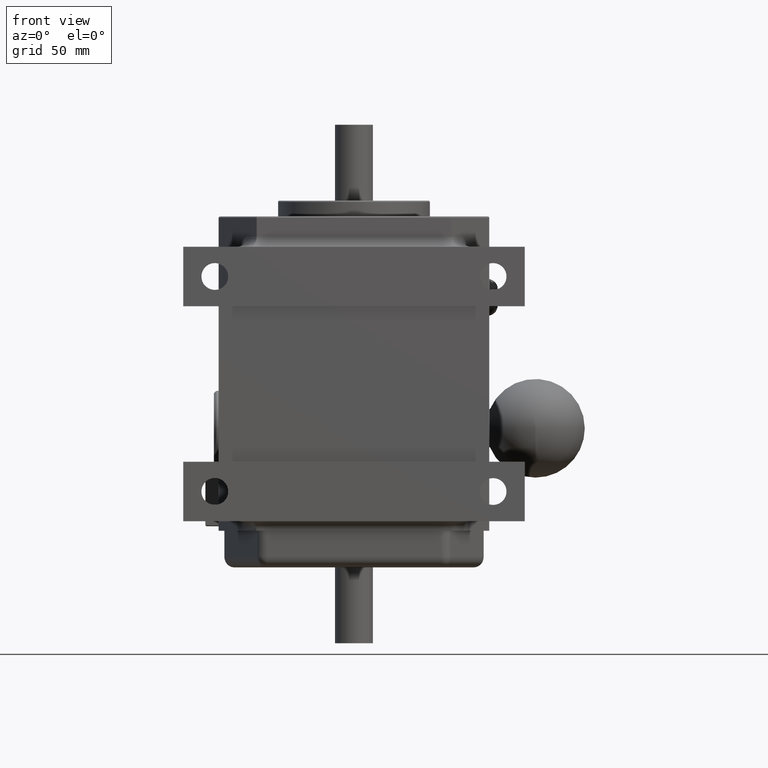
[diagram: clean part render]
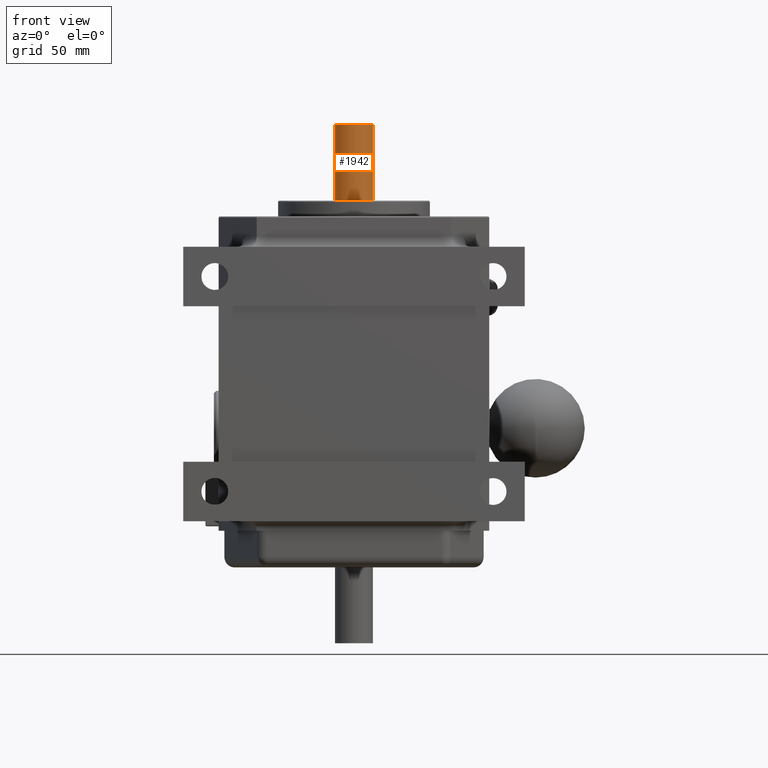
[diagram: same view with one face highlighted and labeled with its STEP entity id]
A machine part, front view. The second image highlights one B-rep face of the part: STEP entity #1942.
In plain terms, the highlighted cylindrical surface (edge-blend (fillet) strip) has radius 9.525 mm, axis along (-0, -0, -1).
Its self-contained STEP definition (entity closure, byte-faithful):
#115 = VERTEX_POINT ( 'NONE', #1016 ) ;
#117 = VERTEX_POINT ( 'NONE', #1018 ) ;
#118 = VERTEX_POINT ( 'NONE', #1019 ) ;
#119 = VERTEX_POINT ( 'NONE', #1020 ) ;
#501 = EDGE_CURVE ( 'NONE', #119, #118, #3984, .T. ) ;
#503 = EDGE_CURVE ( 'NONE', #115, #117, #3983, .T. ) ;
#1016 = CARTESIAN_POINT ( 'NONE',  ( 0.3749999999999998900, 2.625000000000000000, 5.125000000000000000 ) ) ;
#1018 = CARTESIAN_POINT ( 'NONE',  ( 0.3749999999999998900, 2.625000000000000000, 3.624999999999999600 ) ) ;
#1019 = CARTESIAN_POINT ( 'NONE',  ( -0.3750000000000001700, 2.625000000000000000, 3.624999999999999600 ) ) ;
#1020 = CARTESIAN_POINT ( 'NONE',  ( -0.3750000000000001700, 2.625000000000000000, 5.125000000000000000 ) ) ;
#1352 = EDGE_LOOP ( 'NONE', ( #2402, #2403, #2404, #2405 ) ) ;
#1942 = ADVANCED_FACE ( 'NONE', ( #5717 ), #5723, .T. ) ;
#2402 = ORIENTED_EDGE ( 'NONE', *, *, #503, .F. ) ;
#2403 = ORIENTED_EDGE ( 'NONE', *, *, #2505, .F. ) ;
#2404 = ORIENTED_EDGE ( 'NONE', *, *, #501, .T. ) ;
#2405 = ORIENTED_EDGE ( 'NONE', *, *, #2508, .T. ) ;
#2505 = EDGE_CURVE ( 'NONE', #119, #115, #10727, .T. ) ;
#2508 = EDGE_CURVE ( 'NONE', #118, #117, #10731, .T. ) ;
#3981 = VECTOR ( 'NONE', #4859, 39.37007874015748100 ) ;
#3983 = LINE ( 'NONE', #4858, #3981 ) ;
#3984 = LINE ( 'NONE', #4853, #3985 ) ;
#3985 = VECTOR ( 'NONE', #4854, 39.37007874015748100 ) ;
#4512 = AXIS2_PLACEMENT_3D ( 'NONE', #6717, #6718, #6713 ) ;
#4853 = CARTESIAN_POINT ( 'NONE',  ( -0.3750000000000001700, 2.625000000000000000, 5.125000000000000000 ) ) ;
#4854 = DIRECTION ( 'NONE',  ( -0.0000000000000000000, -0.0000000000000000000, -1.000000000000000000 ) ) ;
#4858 = CARTESIAN_POINT ( 'NONE',  ( 0.3749999999999998900, 2.625000000000000000, 5.125000000000000000 ) ) ;
#4859 = DIRECTION ( 'NONE',  ( -0.0000000000000000000, -0.0000000000000000000, -1.000000000000000000 ) ) ;
#5717 = FACE_OUTER_BOUND ( 'NONE', #1352, .T. ) ;
#5723 = CYLINDRICAL_SURFACE ( 'NONE', #4512, 0.3750000000000000600 ) ;
#6713 = DIRECTION ( 'NONE',  ( -1.000000000000000000, 0.0000000000000000000, 0.0000000000000000000 ) ) ;
#6717 = CARTESIAN_POINT ( 'NONE',  ( -1.224646799147353200E-016, 2.625000000000000000, 5.125000000000000000 ) ) ;
#6718 = DIRECTION ( 'NONE',  ( -0.0000000000000000000, -0.0000000000000000000, -1.000000000000000000 ) ) ;
#7675 = AXIS2_PLACEMENT_3D ( 'NONE', #10337, #10350, #10351 ) ;
#7677 = AXIS2_PLACEMENT_3D ( 'NONE', #10340, #10343, #10344 ) ;
#10337 = CARTESIAN_POINT ( 'NONE',  ( -1.224646799147353200E-016, 2.625000000000000000, 3.624999999999999600 ) ) ;
#10340 = CARTESIAN_POINT ( 'NONE',  ( -1.224646799147353200E-016, 2.625000000000000000, 5.125000000000000000 ) ) ;
#10343 = DIRECTION ( 'NONE',  ( 0.0000000000000000000, 0.0000000000000000000, 1.000000000000000000 ) ) ;
#10344 = DIRECTION ( 'NONE',  ( 1.000000000000000000, 0.0000000000000000000, 0.0000000000000000000 ) ) ;
#10350 = DIRECTION ( 'NONE',  ( 0.0000000000000000000, 0.0000000000000000000, 1.000000000000000000 ) ) ;
#10351 = DIRECTION ( 'NONE',  ( 1.000000000000000000, 0.0000000000000000000, 0.0000000000000000000 ) ) ;
#10727 = CIRCLE ( 'NONE', #7677, 0.3750000000000000600 ) ;
#10731 = CIRCLE ( 'NONE', #7675, 0.3750000000000000600 ) ;